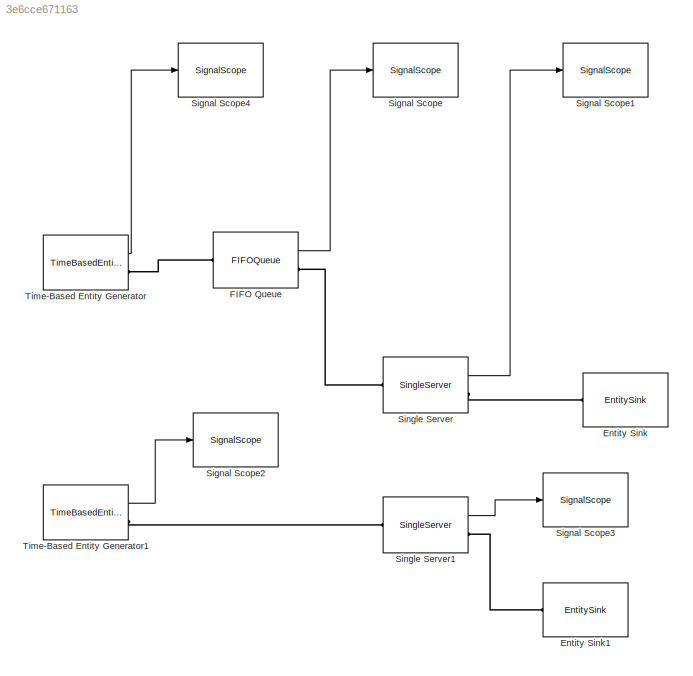
MODEL slx_3e6cce671163
KIND model
BLOCK [EntitySink] Entity Sink
  Ports = [0, 0, 0, 0, 0, 1]
BLOCK [EntitySink] Entity Sink1
  Ports = [0, 0, 0, 0, 0, 1]
BLOCK [FIFOQueue] FIFO Queue
  OutputPortMap = o1
  Ports = [0, 1, 0, 0, 0, 1, 1]
  StatNumberInBlock = on
BLOCK [SignalScope] Signal Scope
  CopyFcn = des.scope.CallbackSupport('seCopyFcn',gcbh)
  DeleteFcn = des.scope.CallbackSupport('seDeleteFcn',gcbh)
  InputPortMap = u0
  LoadFcn = des.scope.CallbackSupport('seLoadFcn',gcbh)
  NameChangeFcn = des.scope.CallbackSupport('seNameChangeFcn',gcbh)
  OpenFcn = des.scope.CallbackSupport('seOpenFcn',gcbh)
  Ports = [1]
  PreSaveFcn = des.scope.CallbackSupport('sePreSaveFcn',gcbh)
  StartFcn = des.scope.CallbackSupport('seStartFcn',gcbh)
  StopFcn = des.scope.CallbackSupport('seStopFcn',gcbh)
BLOCK [SignalScope] Signal Scope1
  CopyFcn = des.scope.CallbackSupport('seCopyFcn',gcbh)
  DeleteFcn = des.scope.CallbackSupport('seDeleteFcn',gcbh)
  InputPortMap = u0
  LoadFcn = des.scope.CallbackSupport('seLoadFcn',gcbh)
  NameChangeFcn = des.scope.CallbackSupport('seNameChangeFcn',gcbh)
  OpenFcn = des.scope.CallbackSupport('seOpenFcn',gcbh)
  Ports = [1]
  PreSaveFcn = des.scope.CallbackSupport('sePreSaveFcn',gcbh)
  StartFcn = des.scope.CallbackSupport('seStartFcn',gcbh)
  StopFcn = des.scope.CallbackSupport('seStopFcn',gcbh)
BLOCK [SignalScope] Signal Scope2
  CopyFcn = des.scope.CallbackSupport('seCopyFcn',gcbh)
  DeleteFcn = des.scope.CallbackSupport('seDeleteFcn',gcbh)
  InputPortMap = u0
  LoadFcn = des.scope.CallbackSupport('seLoadFcn',gcbh)
  NameChangeFcn = des.scope.CallbackSupport('seNameChangeFcn',gcbh)
  OpenFcn = des.scope.CallbackSupport('seOpenFcn',gcbh)
  Ports = [1]
  PreSaveFcn = des.scope.CallbackSupport('sePreSaveFcn',gcbh)
  StartFcn = des.scope.CallbackSupport('seStartFcn',gcbh)
  StopFcn = des.scope.CallbackSupport('seStopFcn',gcbh)
BLOCK [SignalScope] Signal Scope3
  CopyFcn = des.scope.CallbackSupport('seCopyFcn',gcbh)
  DeleteFcn = des.scope.CallbackSupport('seDeleteFcn',gcbh)
  InputPortMap = u0
  LoadFcn = des.scope.CallbackSupport('seLoadFcn',gcbh)
  NameChangeFcn = des.scope.CallbackSupport('seNameChangeFcn',gcbh)
  OpenFcn = des.scope.CallbackSupport('seOpenFcn',gcbh)
  Ports = [1]
  PreSaveFcn = des.scope.CallbackSupport('sePreSaveFcn',gcbh)
  StartFcn = des.scope.CallbackSupport('seStartFcn',gcbh)
  StopFcn = des.scope.CallbackSupport('seStopFcn',gcbh)
BLOCK [SignalScope] Signal Scope4
  CopyFcn = des.scope.CallbackSupport('seCopyFcn',gcbh)
  DeleteFcn = des.scope.CallbackSupport('seDeleteFcn',gcbh)
  InputPortMap = u0
  LoadFcn = des.scope.CallbackSupport('seLoadFcn',gcbh)
  NameChangeFcn = des.scope.CallbackSupport('seNameChangeFcn',gcbh)
  OpenFcn = des.scope.CallbackSupport('seOpenFcn',gcbh)
  Ports = [1]
  PreSaveFcn = des.scope.CallbackSupport('sePreSaveFcn',gcbh)
  StartFcn = des.scope.CallbackSupport('seStartFcn',gcbh)
  StopFcn = des.scope.CallbackSupport('seStopFcn',gcbh)
BLOCK [SingleServer] Single Server
  OutputPortMap = o0
  Ports = [0, 1, 0, 0, 0, 1, 1]
  ServiceTime = 1.2
  StatNumberDeparted = on
BLOCK [SingleServer] Single Server1
  OutputPortMap = o0
  Ports = [0, 1, 0, 0, 0, 1, 1]
  ServiceTime = 1.2
  StatNumberDeparted = on
BLOCK [TimeBasedEntityGenerator] Time-Based Entity Generator
  Maximum = 1.2
  Minimum = 0.8
  OutputPortMap = o0
  Ports = [0, 1, 0, 0, 0, 0, 1]
  StatNumberDeparted = on
BLOCK [TimeBasedEntityGenerator] Time-Based Entity Generator1
  OutputPortMap = o0
  Ports = [0, 1, 0, 0, 0, 0, 1]
  StatNumberDeparted = on
LINE FIFO Queue:1 -> Signal Scope:1
LINE Single Server1:1 -> Signal Scope3:1
LINE Single Server:1 -> Signal Scope1:1
LINE Time-Based Entity Generator1:1 -> Signal Scope2:1
LINE Time-Based Entity Generator:1 -> Signal Scope4:1
PLINE Entity Sink1:LConn1 -- Single Server1:RConn1
PLINE Entity Sink:LConn1 -- Single Server:RConn1
PLINE FIFO Queue:LConn1 -- Time-Based Entity Generator:RConn1
PLINE FIFO Queue:RConn1 -- Single Server:LConn1
PLINE Single Server1:LConn1 -- Time-Based Entity Generator1:RConn1
